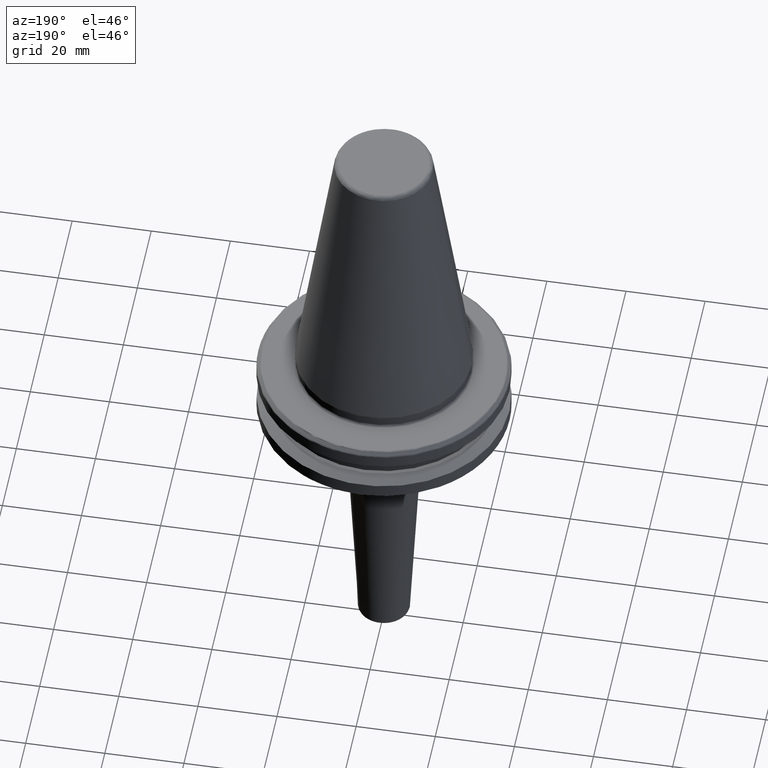
[diagram: clean part render]
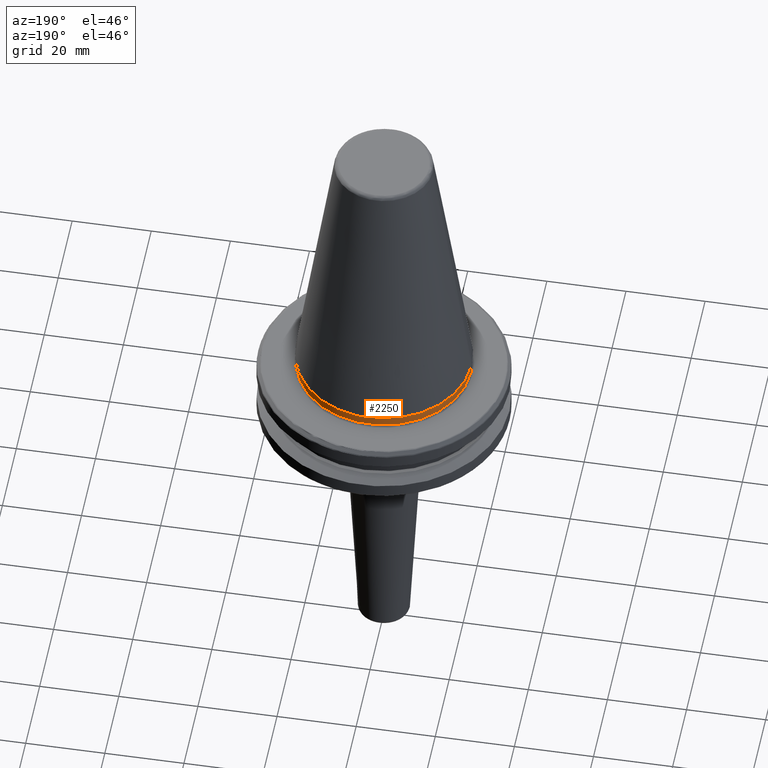
[diagram: same view with one face highlighted and labeled with its STEP entity id]
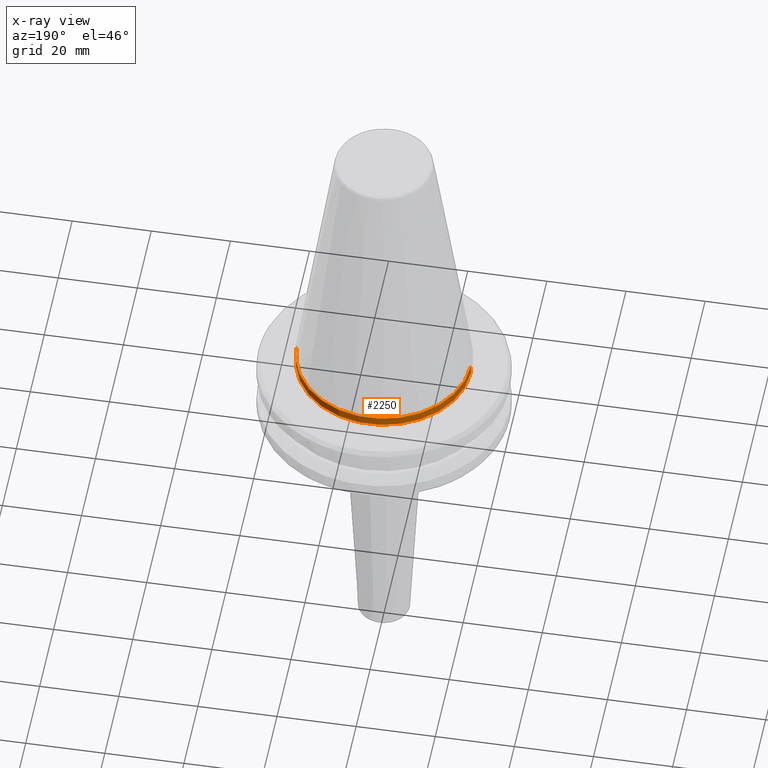
[diagram: x-ray of the same camera — body ghosted, the highlighted face saturated]
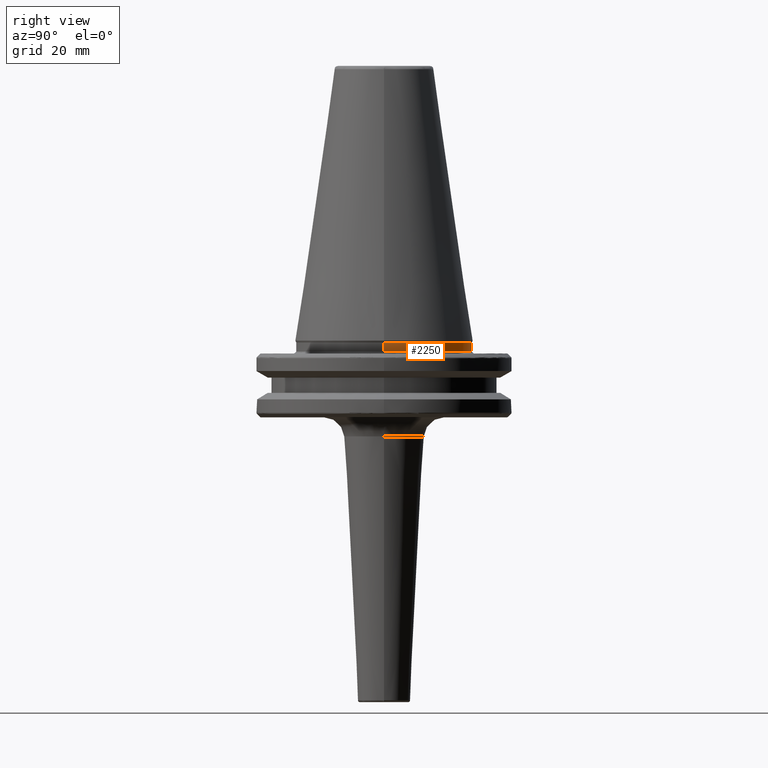
[diagram: same view with one face highlighted and labeled with its STEP entity id]
A machine part, auxiliary view. The second image highlights one B-rep face of the part: STEP entity #2250.
The next image is the same camera in x-ray: the body ghosted, the highlighted face saturated — about 0% of this face is hidden behind the body in this view.
A second angle (right view) of the same face is appended — the face is thin or edge-on in the first view.
In plain terms, the highlighted cylindrical surface (partial cylindrical patch) has radius 22 mm, axis along (0, 0, 1).
Its self-contained STEP definition (entity closure, byte-faithful):
#127 = ORIENTED_EDGE ( 'NONE', *, *, #2886, .F. ) ;
#208 = VECTOR ( 'NONE', #416, 1000.000000000000000 ) ;
#395 = CARTESIAN_POINT ( 'NONE',  ( 0.0000000000000000000, 0.0000000000000000000, -2.699999999999994000 ) ) ;
#416 = DIRECTION ( 'NONE',  ( 0.0000000000000000000, 0.0000000000000000000, 1.000000000000000000 ) ) ;
#453 = EDGE_CURVE ( 'NONE', #1315, #2951, #2233, .T. ) ;
#566 = EDGE_CURVE ( 'NONE', #1315, #835, #859, .T. ) ;
#572 = LINE ( 'NONE', #1049, #2331 ) ;
#576 = CARTESIAN_POINT ( 'NONE',  ( 0.0000000000000000000, 0.0000000000000000000, 113.5216080541959500 ) ) ;
#646 = EDGE_LOOP ( 'NONE', ( #661, #2246, #127, #1870 ) ) ;
#661 = ORIENTED_EDGE ( 'NONE', *, *, #453, .T. ) ;
#740 = CARTESIAN_POINT ( 'NONE',  ( 22.00000000000000000, 0.0000000000000000000, -2.699999999999994000 ) ) ;
#835 = VERTEX_POINT ( 'NONE', #1331 ) ;
#839 = AXIS2_PLACEMENT_3D ( 'NONE', #395, #2509, #2489 ) ;
#859 = LINE ( 'NONE', #2290, #208 ) ;
#865 = AXIS2_PLACEMENT_3D ( 'NONE', #576, #1980, #2408 ) ;
#1049 = CARTESIAN_POINT ( 'NONE',  ( -22.00000000000000000, 2.694222958124176800E-015, 113.5216080541959500 ) ) ;
#1178 = CARTESIAN_POINT ( 'NONE',  ( -22.00000000000000000, 2.694222958124176800E-015, -2.699999999999994000 ) ) ;
#1262 = DIRECTION ( 'NONE',  ( 0.0000000000000000000, 0.0000000000000000000, 1.000000000000000000 ) ) ;
#1315 = VERTEX_POINT ( 'NONE', #740 ) ;
#1331 = CARTESIAN_POINT ( 'NONE',  ( 22.00000000000000000, 0.0000000000000000000, -0.4825140571146652700 ) ) ;
#1775 = EDGE_CURVE ( 'NONE', #2951, #2122, #572, .T. ) ;
#1870 = ORIENTED_EDGE ( 'NONE', *, *, #566, .F. ) ;
#1980 = DIRECTION ( 'NONE',  ( 0.0000000000000000000, 0.0000000000000000000, 1.000000000000000000 ) ) ;
#2119 = CIRCLE ( 'NONE', #2630, 22.00000000000000000 ) ;
#2122 = VERTEX_POINT ( 'NONE', #2319 ) ;
#2233 = CIRCLE ( 'NONE', #839, 22.00000000000000000 ) ;
#2246 = ORIENTED_EDGE ( 'NONE', *, *, #1775, .T. ) ;
#2250 = ADVANCED_FACE ( 'NONE', ( #2364 ), #2832, .T. ) ;
#2290 = CARTESIAN_POINT ( 'NONE',  ( 22.00000000000000000, 0.0000000000000000000, 113.5216080541959500 ) ) ;
#2319 = CARTESIAN_POINT ( 'NONE',  ( -22.00000000000000000, 2.694222958124176800E-015, -0.4825140571146635500 ) ) ;
#2331 = VECTOR ( 'NONE', #2877, 1000.000000000000000 ) ;
#2364 = FACE_OUTER_BOUND ( 'NONE', #646, .T. ) ;
#2408 = DIRECTION ( 'NONE',  ( 1.000000000000000000, 0.0000000000000000000, 0.0000000000000000000 ) ) ;
#2489 = DIRECTION ( 'NONE',  ( 1.000000000000000000, 0.0000000000000000000, 0.0000000000000000000 ) ) ;
#2509 = DIRECTION ( 'NONE',  ( 0.0000000000000000000, 0.0000000000000000000, 1.000000000000000000 ) ) ;
#2625 = CARTESIAN_POINT ( 'NONE',  ( 0.0000000000000000000, 0.0000000000000000000, -0.4825140571146635500 ) ) ;
#2630 = AXIS2_PLACEMENT_3D ( 'NONE', #2625, #1262, #2851 ) ;
#2832 = CYLINDRICAL_SURFACE ( 'NONE', #865, 22.00000000000000000 ) ;
#2851 = DIRECTION ( 'NONE',  ( 1.000000000000000000, 0.0000000000000000000, -7.885106708985486600E-017 ) ) ;
#2877 = DIRECTION ( 'NONE',  ( 0.0000000000000000000, 0.0000000000000000000, 1.000000000000000000 ) ) ;
#2886 = EDGE_CURVE ( 'NONE', #835, #2122, #2119, .T. ) ;
#2951 = VERTEX_POINT ( 'NONE', #1178 ) ;